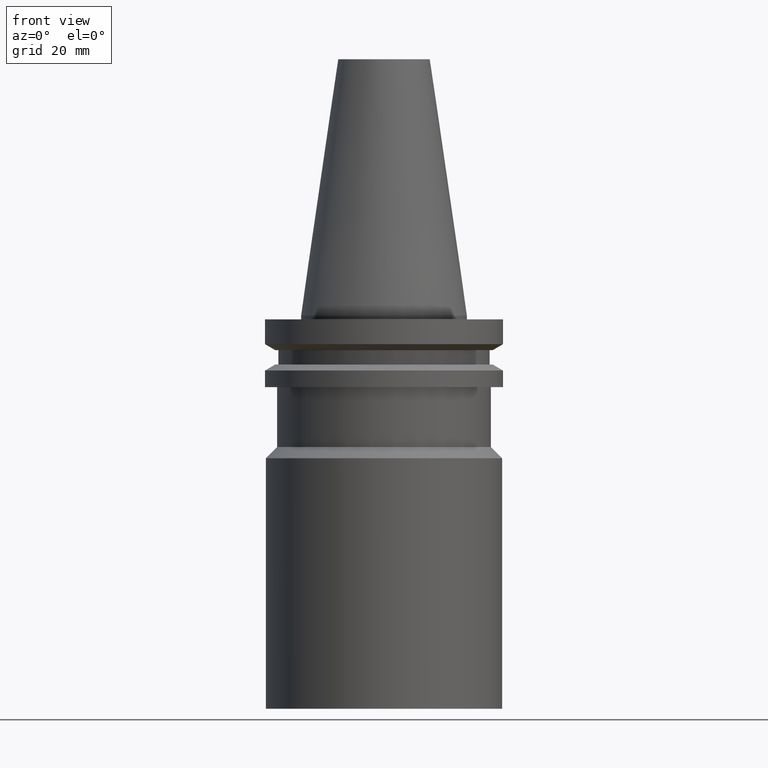
[diagram: clean part render]
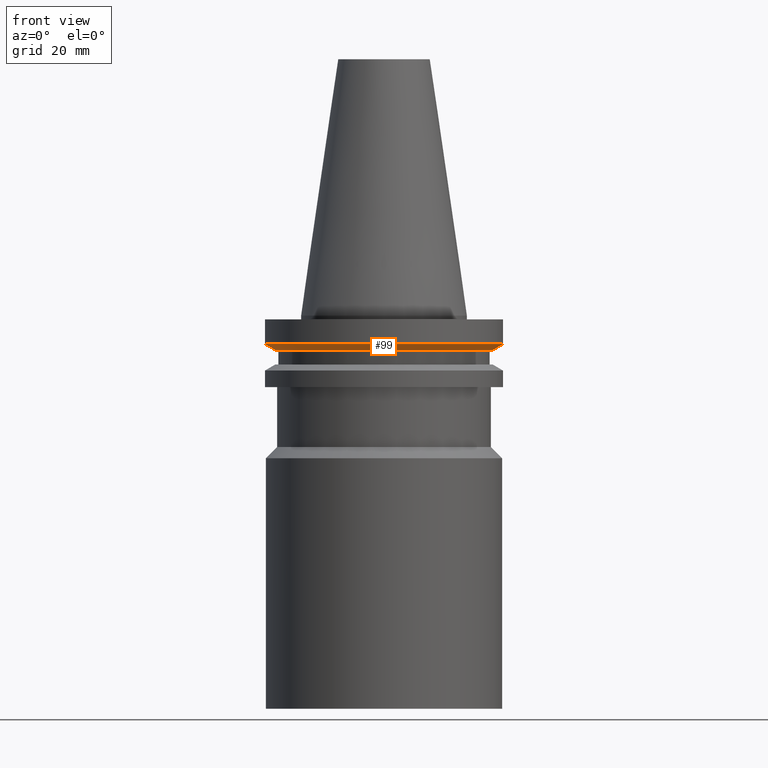
[diagram: same view with one face highlighted and labeled with its STEP entity id]
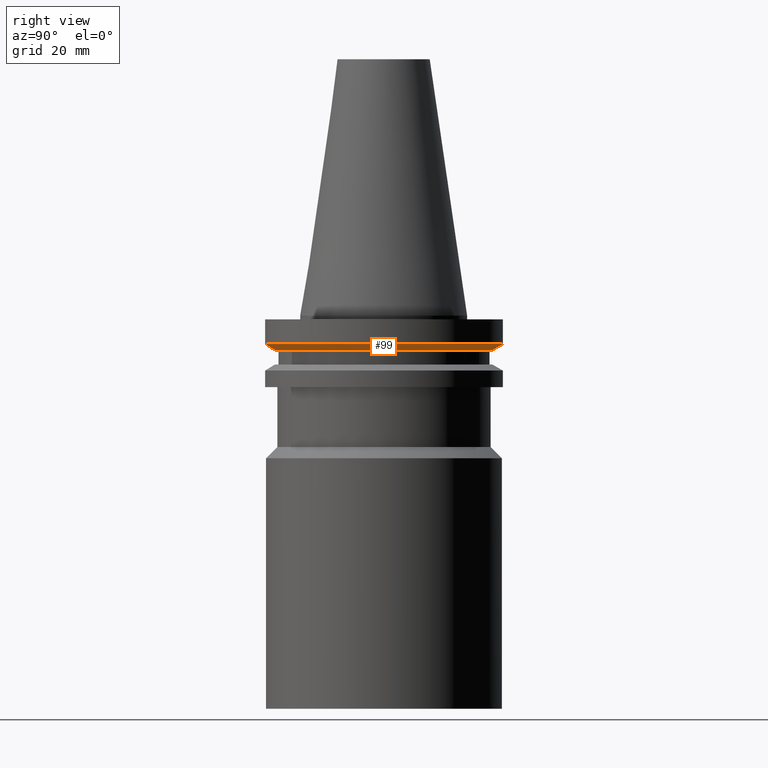
[diagram: same view with one face highlighted and labeled with its STEP entity id]
A machine part, front view. The second image highlights one B-rep face of the part: STEP entity #99.
A second angle (right view) of the same face is appended — the face is thin or edge-on in the first view.
In plain terms, the highlighted conical surface has half-angle 60 deg.
Its self-contained STEP definition (entity closure, byte-faithful):
#99=ADVANCED_FACE('Unnamed[1]',(#218,#219),#220,.T.);
#120=EDGE_CURVE('Unnamed[1]',#252,#252,#253,.T.);
#129=EDGE_CURVE('Unnamed[1]',#266,#266,#267,.T.);
#218=FACE_BOUND('',#367,.T.);
#219=FACE_BOUND('',#368,.T.);
#220=CONICAL_SURFACE('',#369,30.3590187752662,1.0471975511966);
#252=VERTEX_POINT('',#409);
#253=CIRCLE('',#410,28.9680375505323);
#266=VERTEX_POINT('',#427);
#267=CIRCLE('',#428,31.75);
#367=EDGE_LOOP('',(#512));
#368=EDGE_LOOP('',(#513));
#369=AXIS2_PLACEMENT_3D('',#514,#515,#516);
#409=CARTESIAN_POINT('',(5.63337527607784E-016,28.9680375505323,-9.20000000000002));
#410=AXIS2_PLACEMENT_3D('',#552,#553,#554);
#427=CARTESIAN_POINT('',(4.64988177975518E-016,31.75,-7.59383323092439));
#428=AXIS2_PLACEMENT_3D('',#567,#568,#569);
#512=ORIENTED_EDGE('',*,*,#120,.F.);
#513=ORIENTED_EDGE('',*,*,#129,.T.);
#514=CARTESIAN_POINT('',(5.14162852791651E-016,-1.79863577132774E-014,-8.3969166154622));
#515=DIRECTION('',(-6.12323399573677E-017,1.22421842920776E-016,1.0));
#516=DIRECTION('',(2.66902317316279E-033,1.0,-1.22421842920776E-016));
#552=CARTESIAN_POINT('',(5.63337527607784E-016,-1.80846726612316E-014,-9.20000000000003));
#553=DIRECTION('',(6.12323399573677E-017,-1.22421842920799E-016,-1.0));
#554=DIRECTION('',(2.66902317316472E-033,1.0,-1.22421842920799E-016));
#567=CARTESIAN_POINT('',(4.64988177975517E-016,-1.78880427653232E-014,-7.59383323092437));
#568=DIRECTION('',(6.12323399573677E-017,-1.22421842920806E-016,-1.0));
#569=DIRECTION('',(2.66902317316385E-033,1.0,-1.22421842920806E-016));